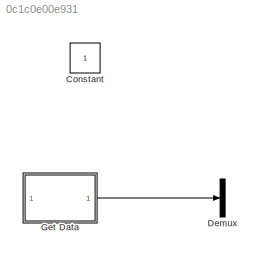
MODEL slx_0c1c0e00e931
KIND model
CONFIG AbsTol = auto
CONFIG EnableMultiTasking = off
CONFIG FixedStep = auto
CONFIG MaxStep = auto
CONFIG MinStep = auto
CONFIG RelTol = 1e-3
CONFIG SampleTimeConstraint = Unconstrained
CONFIG SolverName = VariableStepAuto
CONFIG StartTime = 0.0
CONFIG StopTime = 10.0
BLOCK [Constant] Constant
BLOCK [Demux] Demux
  Outputs = 2
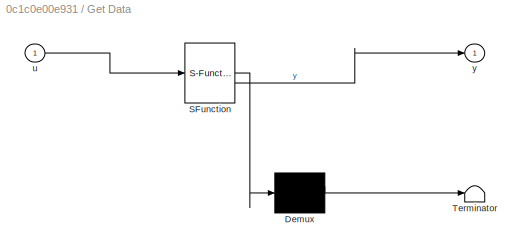
BLOCK [SubSystem] Get Data
  ErrorFcn = Stateflow.Translate.translate
  PermitHierarchicalResolution = ExplicitOnly
  SFBlockType = MATLAB Function
  TreatAsAtomicUnit = on
BLOCK [Demux] Get Data/ Demux 
  Outputs = 1
BLOCK [S-Function] Get Data/ SFunction 
  EnableBusSupport = off
  FunctionName = sf_sfun
  PortCounts = [1 2]
  SFcnIsStateOwnerBlock = off
  SFunctionDeploymentMode = off
  Tag = Stateflow S-Function 2
BLOCK [Terminator] Get Data/ Terminator 
BLOCK [Inport] Get Data/u
BLOCK [Outport] Get Data/y
LINE Get Data:1 -> Demux:1
CHART Get Data states=1 transitions=1
  STATE_LABEL 'eML_blk_kernel()'
  STATE_LABEL 'SCRIPT:\nfunction y = fcn(u)\n    device = serialport("COM3",9600);\n    write(device,u,"uint8");\n    data = read(device,5,"uint8");\n\ny = data;\n'
CHART  states=0 transitions=0
